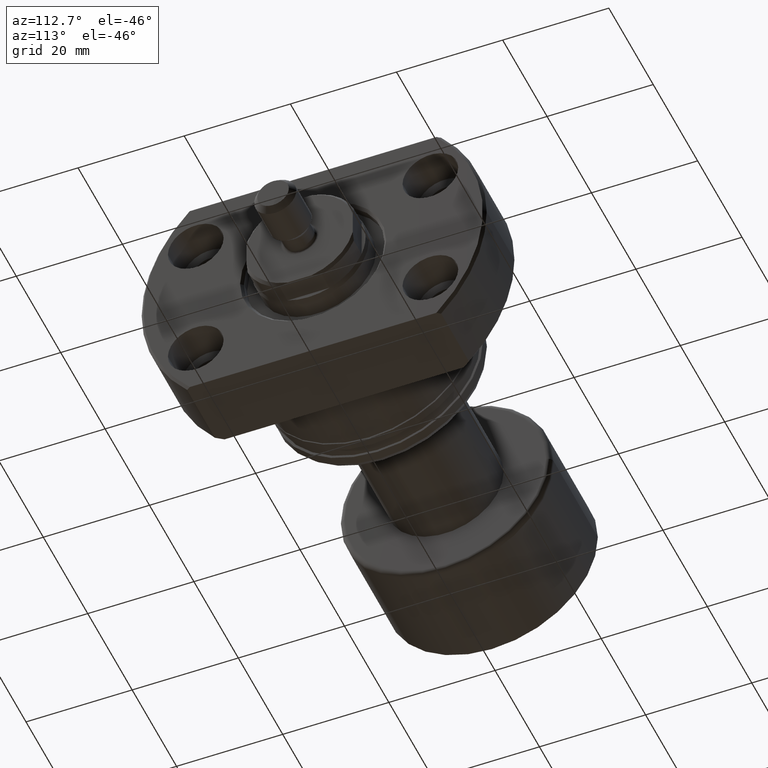
[diagram: clean part render]
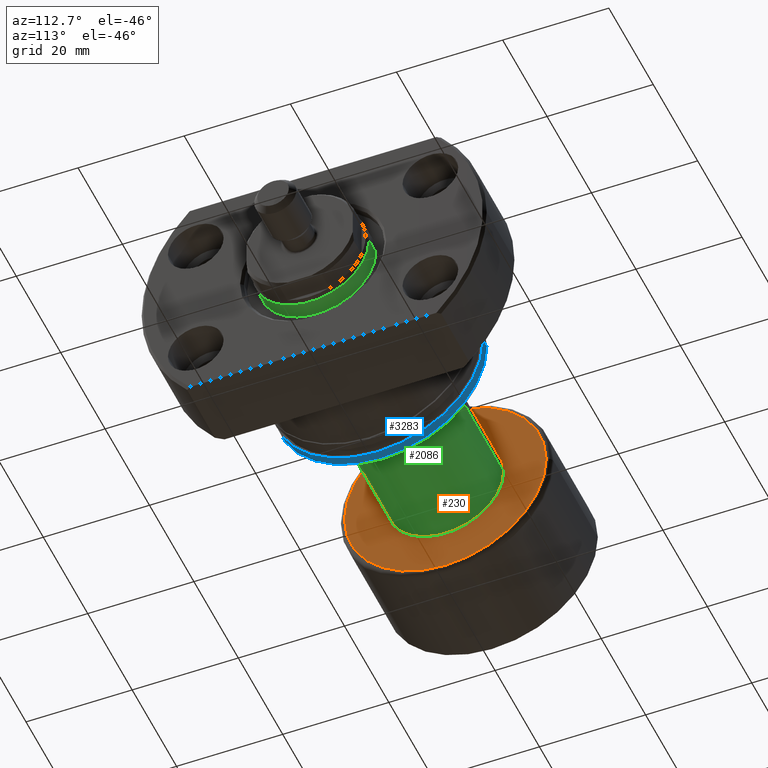
[diagram: same view with three faces highlighted in distinct colors, each labeled with its STEP entity id]
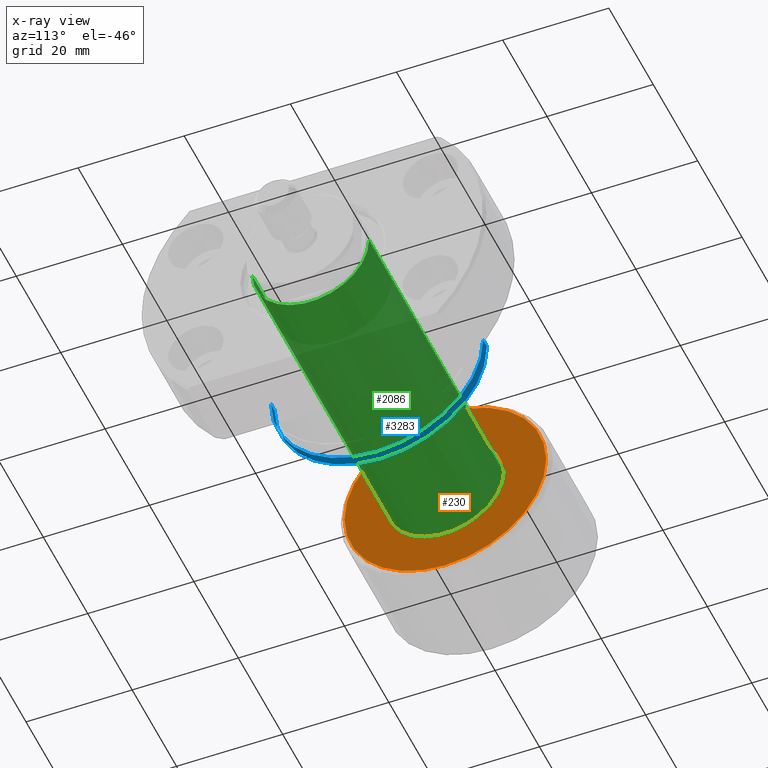
[diagram: x-ray of the same camera — body ghosted, the three highlighted faces saturated]
A machine part, auxiliary view with three faces highlighted in distinct colors.
The next image is the same camera in x-ray (body ghosted, the three faces saturated) — at least one of them is partly hidden behind the body in this view.
Their STEP definitions:

[orange] entity #230 — the highlighted planar face has unit normal (-1, -0, 0).
#42 = VERTEX_POINT ( 'NONE', #2304 ) ;
#118 = DIRECTION ( 'NONE',  ( -1.000000000000000000, -1.069542322069065801E-17, -0.000000000000000000 ) ) ;
#165 = ORIENTED_EDGE ( 'NONE', *, *, #998, .F. ) ;
#178 = CARTESIAN_POINT ( 'NONE',  ( 22.39999999999999858, -11.00000000000000000, 0.000000000000000000 ) ) ;
#230 = ADVANCED_FACE ( 'NONE', ( #2126, #3512 ), #3260, .F. ) ;
#524 = AXIS2_PLACEMENT_3D ( 'NONE', #2063, #3199, #2318 ) ;
#696 = CIRCLE ( 'NONE', #2657, 19.00000000000000000 ) ;
#717 = EDGE_CURVE ( 'NONE', #42, #1484, #762, .T. ) ;
#762 = CIRCLE ( 'NONE', #524, 11.00000000000000000 ) ;
#858 = EDGE_LOOP ( 'NONE', ( #165, #2877 ) ) ;
#998 = EDGE_CURVE ( 'NONE', #2033, #3638, #696, .T. ) ;
#1049 = AXIS2_PLACEMENT_3D ( 'NONE', #2728, #118, #2191 ) ;
#1118 = AXIS2_PLACEMENT_3D ( 'NONE', #1318, #3282, #2708 ) ;
#1188 = EDGE_LOOP ( 'NONE', ( #2389, #2061 ) ) ;
#1189 = EDGE_CURVE ( 'NONE', #3638, #2033, #2123, .T. ) ;
#1296 = CARTESIAN_POINT ( 'NONE',  ( 22.39999999999999858, 2.395774801434707739E-16, 0.000000000000000000 ) ) ;
#1318 = CARTESIAN_POINT ( 'NONE',  ( 22.39999999999999858, 2.395774801434707739E-16, 0.000000000000000000 ) ) ;
#1484 = VERTEX_POINT ( 'NONE', #2683 ) ;
#1533 = CARTESIAN_POINT ( 'NONE',  ( 22.39999999999999858, -19.00000000000000000, 0.000000000000000000 ) ) ;
#1844 = DIRECTION ( 'NONE',  ( 0.000000000000000000, -1.000000000000000000, 0.000000000000000000 ) ) ;
#1902 = DIRECTION ( 'NONE',  ( -1.000000000000000000, -1.069542322069065801E-17, -0.000000000000000000 ) ) ;
#1934 = AXIS2_PLACEMENT_3D ( 'NONE', #178, #3573, #2142 ) ;
#2033 = VERTEX_POINT ( 'NONE', #1533 ) ;
#2061 = ORIENTED_EDGE ( 'NONE', *, *, #717, .T. ) ;
#2063 = CARTESIAN_POINT ( 'NONE',  ( 22.39999999999999858, 2.395774801434707739E-16, 0.000000000000000000 ) ) ;
#2123 = CIRCLE ( 'NONE', #1118, 19.00000000000000000 ) ;
#2126 = FACE_OUTER_BOUND ( 'NONE', #858, .T. ) ;
#2142 = DIRECTION ( 'NONE',  ( 1.069542322069065801E-17, -1.000000000000000000, 0.000000000000000000 ) ) ;
#2191 = DIRECTION ( 'NONE',  ( 0.000000000000000000, -1.000000000000000000, 0.000000000000000000 ) ) ;
#2304 = CARTESIAN_POINT ( 'NONE',  ( 22.39999999999999858, 11.00000000000000000, 1.347111479062094124E-15 ) ) ;
#2318 = DIRECTION ( 'NONE',  ( 0.000000000000000000, -1.000000000000000000, 0.000000000000000000 ) ) ;
#2389 = ORIENTED_EDGE ( 'NONE', *, *, #3016, .T. ) ;
#2657 = AXIS2_PLACEMENT_3D ( 'NONE', #1296, #1902, #1844 ) ;
#2683 = CARTESIAN_POINT ( 'NONE',  ( 22.39999999999999858, -11.00000000000000000, 0.000000000000000000 ) ) ;
#2708 = DIRECTION ( 'NONE',  ( 0.000000000000000000, -1.000000000000000000, 0.000000000000000000 ) ) ;
#2728 = CARTESIAN_POINT ( 'NONE',  ( 22.39999999999999858, 2.395774801434707739E-16, 0.000000000000000000 ) ) ;
#2839 = CARTESIAN_POINT ( 'NONE',  ( 22.39999999999999858, 19.00000000000000000, 2.388061258337338939E-15 ) ) ;
#2877 = ORIENTED_EDGE ( 'NONE', *, *, #1189, .F. ) ;
#2938 = CIRCLE ( 'NONE', #1049, 11.00000000000000000 ) ;
#3016 = EDGE_CURVE ( 'NONE', #1484, #42, #2938, .T. ) ;
#3199 = DIRECTION ( 'NONE',  ( -1.000000000000000000, -1.069542322069065801E-17, -0.000000000000000000 ) ) ;
#3260 = PLANE ( 'NONE',  #1934 ) ;
#3282 = DIRECTION ( 'NONE',  ( -1.000000000000000000, -1.069542322069065801E-17, -0.000000000000000000 ) ) ;
#3512 = FACE_BOUND ( 'NONE', #1188, .T. ) ;
#3573 = DIRECTION ( 'NONE',  ( -1.000000000000000000, -1.069542322069065801E-17, 0.000000000000000000 ) ) ;
#3638 = VERTEX_POINT ( 'NONE', #2839 ) ;

[blue] entity #3283 — the highlighted cylindrical surface (partial cylindrical patch) has radius 20 mm, axis along (1, 0, 0).
#84 = EDGE_LOOP ( 'NONE', ( #2198, #2012, #2156, #3210 ) ) ;
#333 = DIRECTION ( 'NONE',  ( 1.000000000000000000, 2.721437331438560389E-17, -0.000000000000000000 ) ) ;
#385 = VERTEX_POINT ( 'NONE', #3348 ) ;
#513 = AXIS2_PLACEMENT_3D ( 'NONE', #2424, #2754, #3332 ) ;
#767 = CARTESIAN_POINT ( 'NONE',  ( 31.50000000000000000, 8.572527594031465301E-16, 0.000000000000000000 ) ) ;
#845 = DIRECTION ( 'NONE',  ( -2.168404344971009176E-17, 1.000000000000000000, 0.000000000000000000 ) ) ;
#888 = LINE ( 'NONE', #1743, #3642 ) ;
#1013 = FACE_OUTER_BOUND ( 'NONE', #84, .T. ) ;
#1069 = CARTESIAN_POINT ( 'NONE',  ( 2.699999999999785683, 19.99999999999999645, 0.000000000000000000 ) ) ;
#1515 = AXIS2_PLACEMENT_3D ( 'NONE', #767, #3033, #1855 ) ;
#1635 = CYLINDRICAL_SURFACE ( 'NONE', #1515, 19.99999999999999645 ) ;
#1743 = CARTESIAN_POINT ( 'NONE',  ( 31.50000000000000000, -19.99999999999999645, 2.449293598294706119E-15 ) ) ;
#1800 = DIRECTION ( 'NONE',  ( 1.000000000000000000, 2.721437331438560389E-17, -0.000000000000000000 ) ) ;
#1855 = DIRECTION ( 'NONE',  ( 0.000000000000000000, 1.000000000000000000, 0.000000000000000000 ) ) ;
#1874 = VECTOR ( 'NONE', #1800, 1000.000000000000000 ) ;
#1971 = VERTEX_POINT ( 'NONE', #2317 ) ;
#1978 = EDGE_CURVE ( 'NONE', #385, #2568, #888, .T. ) ;
#2012 = ORIENTED_EDGE ( 'NONE', *, *, #3497, .T. ) ;
#2156 = ORIENTED_EDGE ( 'NONE', *, *, #3390, .T. ) ;
#2198 = ORIENTED_EDGE ( 'NONE', *, *, #1978, .F. ) ;
#2317 = CARTESIAN_POINT ( 'NONE',  ( 0.9999999999997853939, 19.99999999999999645, 0.000000000000000000 ) ) ;
#2319 = LINE ( 'NONE', #2921, #1874 ) ;
#2424 = CARTESIAN_POINT ( 'NONE',  ( 0.9999999999997857270, 2.721437331437974598E-17, 0.000000000000000000 ) ) ;
#2467 = CARTESIAN_POINT ( 'NONE',  ( 2.699999999999786127, -19.99999999999999645, 2.449293598294706119E-15 ) ) ;
#2543 = CARTESIAN_POINT ( 'NONE',  ( 2.699999999999786127, 7.347880794883531049E-17, 0.000000000000000000 ) ) ;
#2568 = VERTEX_POINT ( 'NONE', #2467 ) ;
#2582 = CIRCLE ( 'NONE', #3472, 19.99999999999999645 ) ;
#2754 = DIRECTION ( 'NONE',  ( 1.000000000000000000, 2.721437331438560389E-17, -0.000000000000000000 ) ) ;
#2821 = CIRCLE ( 'NONE', #513, 19.99999999999999645 ) ;
#2921 = CARTESIAN_POINT ( 'NONE',  ( 31.50000000000000000, 19.99999999999999645, 0.000000000000000000 ) ) ;
#3033 = DIRECTION ( 'NONE',  ( 1.000000000000000000, 2.721437331438560389E-17, -0.000000000000000000 ) ) ;
#3210 = ORIENTED_EDGE ( 'NONE', *, *, #3645, .F. ) ;
#3232 = VERTEX_POINT ( 'NONE', #1069 ) ;
#3283 = ADVANCED_FACE ( 'NONE', ( #1013 ), #1635, .T. ) ;
#3332 = DIRECTION ( 'NONE',  ( -3.252606517456513918E-17, 1.000000000000000000, 0.000000000000000000 ) ) ;
#3348 = CARTESIAN_POINT ( 'NONE',  ( 0.9999999999997861710, -19.99999999999999645, 2.449293598294706119E-15 ) ) ;
#3390 = EDGE_CURVE ( 'NONE', #1971, #3232, #2319, .T. ) ;
#3395 = DIRECTION ( 'NONE',  ( 1.000000000000000000, 2.721437331438560389E-17, -0.000000000000000000 ) ) ;
#3472 = AXIS2_PLACEMENT_3D ( 'NONE', #2543, #3395, #845 ) ;
#3497 = EDGE_CURVE ( 'NONE', #385, #1971, #2821, .T. ) ;
#3642 = VECTOR ( 'NONE', #333, 1000.000000000000000 ) ;
#3645 = EDGE_CURVE ( 'NONE', #2568, #3232, #2582, .T. ) ;

[green] entity #2086 — the highlighted cylindrical surface (partial cylindrical patch) has radius 11 mm, axis along (-1, -0, -0).
#42 = VERTEX_POINT ( 'NONE', #2304 ) ;
#96 = CIRCLE ( 'NONE', #2773, 11.00000000000019007 ) ;
#197 = CARTESIAN_POINT ( 'NONE',  ( 1.176496554275982688E-16, -11.00000000000009415, 0.000000000000000000 ) ) ;
#515 = EDGE_CURVE ( 'NONE', #3435, #1498, #96, .T. ) ;
#524 = AXIS2_PLACEMENT_3D ( 'NONE', #2063, #3199, #2318 ) ;
#543 = DIRECTION ( 'NONE',  ( 0.000000000000000000, -1.000000000000000000, 0.000000000000000000 ) ) ;
#589 = ORIENTED_EDGE ( 'NONE', *, *, #2241, .F. ) ;
#606 = ORIENTED_EDGE ( 'NONE', *, *, #717, .F. ) ;
#717 = EDGE_CURVE ( 'NONE', #42, #1484, #762, .T. ) ;
#762 = CIRCLE ( 'NONE', #524, 11.00000000000000000 ) ;
#811 = EDGE_LOOP ( 'NONE', ( #589, #1810, #3047, #606 ) ) ;
#962 = CYLINDRICAL_SURFACE ( 'NONE', #1146, 11.00000000000009415 ) ;
#1044 = EDGE_CURVE ( 'NONE', #1498, #1484, #1074, .T. ) ;
#1074 = LINE ( 'NONE', #197, #3664 ) ;
#1146 = AXIS2_PLACEMENT_3D ( 'NONE', #3189, #3516, #2085 ) ;
#1484 = VERTEX_POINT ( 'NONE', #2683 ) ;
#1498 = VERTEX_POINT ( 'NONE', #2341 ) ;
#1655 = CARTESIAN_POINT ( 'NONE',  ( -1.176496554275982688E-16, 11.00000000000009415, 1.347111479062100238E-15 ) ) ;
#1810 = ORIENTED_EDGE ( 'NONE', *, *, #515, .T. ) ;
#2002 = DIRECTION ( 'NONE',  ( -1.000000000000000000, -1.069542322069065801E-17, -0.000000000000000000 ) ) ;
#2063 = CARTESIAN_POINT ( 'NONE',  ( 22.39999999999999858, 2.395774801434707739E-16, 0.000000000000000000 ) ) ;
#2085 = DIRECTION ( 'NONE',  ( 1.069542322069065955E-17, -1.000000000000000000, 0.000000000000000000 ) ) ;
#2086 = ADVANCED_FACE ( 'NONE', ( #2327 ), #962, .T. ) ;
#2100 = VECTOR ( 'NONE', #3675, 1000.000000000000000 ) ;
#2219 = DIRECTION ( 'NONE',  ( -1.000000000000000000, -1.069542322069065801E-17, -0.000000000000000000 ) ) ;
#2241 = EDGE_CURVE ( 'NONE', #3435, #42, #3431, .T. ) ;
#2304 = CARTESIAN_POINT ( 'NONE',  ( 22.39999999999999858, 11.00000000000000000, 1.347111479062094124E-15 ) ) ;
#2318 = DIRECTION ( 'NONE',  ( 0.000000000000000000, -1.000000000000000000, 0.000000000000000000 ) ) ;
#2327 = FACE_OUTER_BOUND ( 'NONE', #811, .T. ) ;
#2341 = CARTESIAN_POINT ( 'NONE',  ( 83.06675751232377536, -11.00000000000018829, 0.000000000000000000 ) ) ;
#2556 = CARTESIAN_POINT ( 'NONE',  ( 83.06675751232377536, 8.884341271647877269E-16, 0.000000000000000000 ) ) ;
#2683 = CARTESIAN_POINT ( 'NONE',  ( 22.39999999999999858, -11.00000000000000000, 0.000000000000000000 ) ) ;
#2773 = AXIS2_PLACEMENT_3D ( 'NONE', #2556, #2002, #543 ) ;
#2961 = CARTESIAN_POINT ( 'NONE',  ( 83.06675751232377536, 11.00000000000019185, 1.347111479062111873E-15 ) ) ;
#3047 = ORIENTED_EDGE ( 'NONE', *, *, #1044, .T. ) ;
#3189 = CARTESIAN_POINT ( 'NONE',  ( 0.000000000000000000, 0.000000000000000000, 0.000000000000000000 ) ) ;
#3199 = DIRECTION ( 'NONE',  ( -1.000000000000000000, -1.069542322069065801E-17, -0.000000000000000000 ) ) ;
#3431 = LINE ( 'NONE', #1655, #2100 ) ;
#3435 = VERTEX_POINT ( 'NONE', #2961 ) ;
#3516 = DIRECTION ( 'NONE',  ( -1.000000000000000000, -1.069542322069065801E-17, -0.000000000000000000 ) ) ;
#3664 = VECTOR ( 'NONE', #2219, 1000.000000000000000 ) ;
#3675 = DIRECTION ( 'NONE',  ( -1.000000000000000000, -1.069542322069065801E-17, -0.000000000000000000 ) ) ;